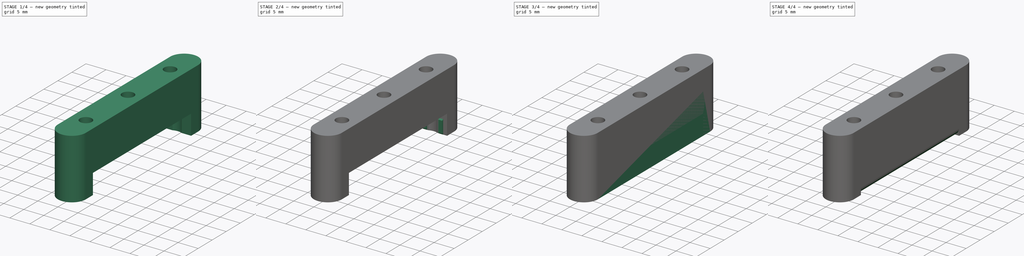
[diagram: build sequence overview — one tinted view per stage of 4, left to right]
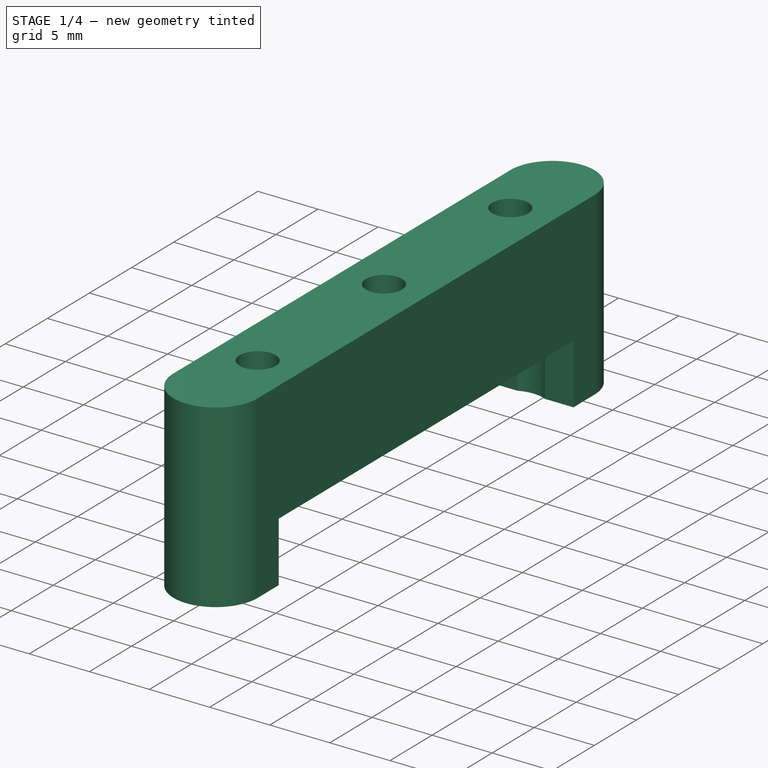
[diagram: stage 1 of 4 — iso view after this stage's code; geometry added in this stage tinted green]
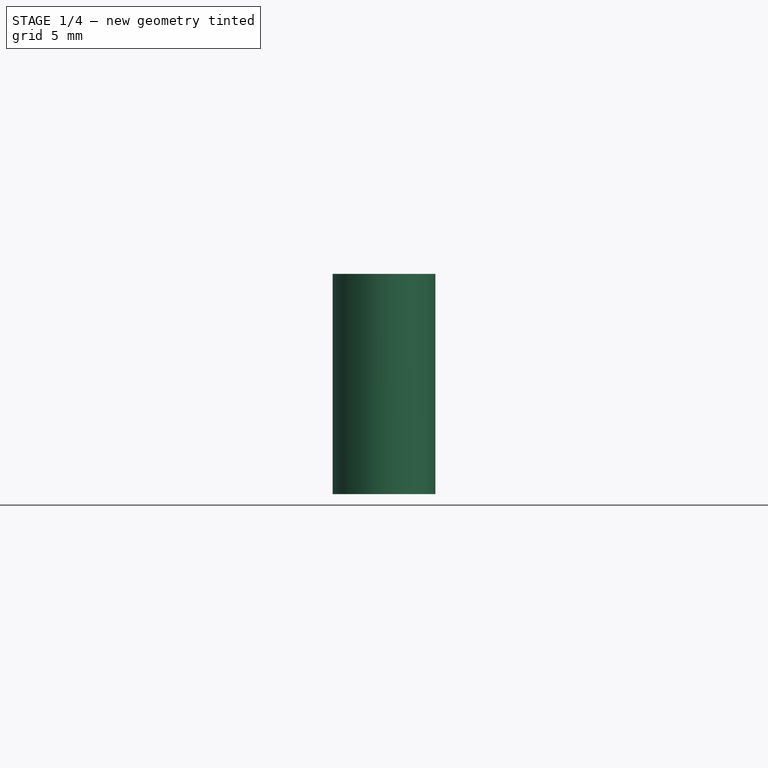
[diagram: stage 1 of 4 — front view after this stage's code; geometry added in this stage tinted green]
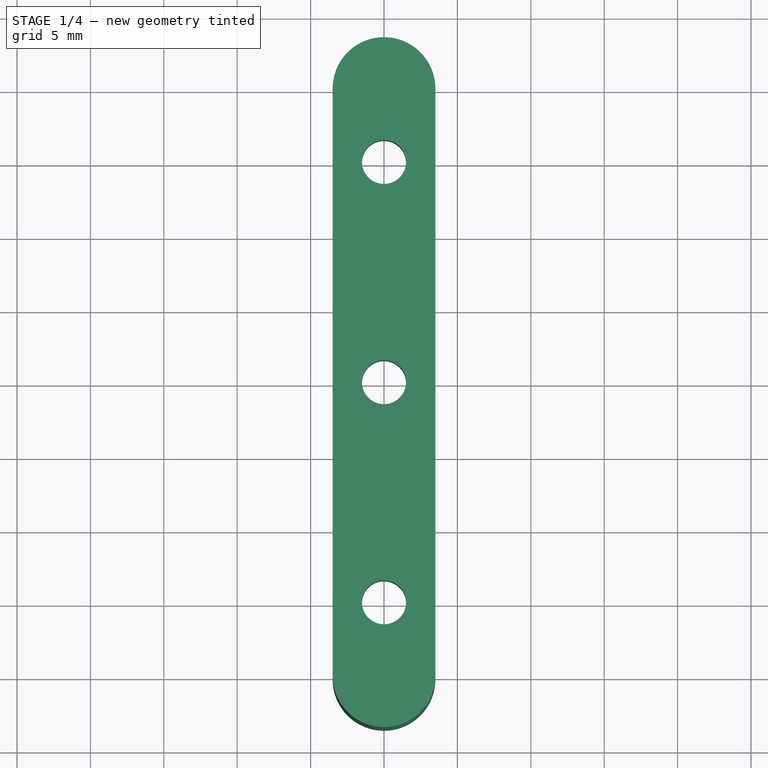
[diagram: stage 1 of 4 — top view after this stage's code; geometry added in this stage tinted green]
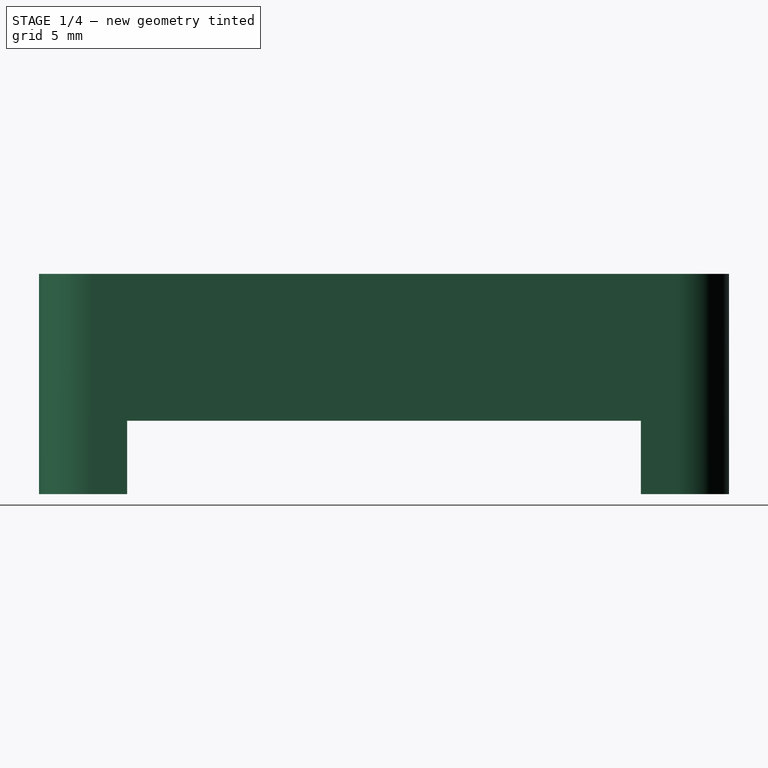
[diagram: stage 1 of 4 — right view after this stage's code; geometry added in this stage tinted green]
FCSTD DOCUMENT  (FreeCAD 1.1R39980 (Git))
Label: din35_holder
License: All rights reserved
LicenseURL: https://en.wikipedia.org/wiki/All_rights_reserved
objects: Sketcher::SketchObject×8, PartDesign::Pad×4, PartDesign::Pocket×4, PartDesign::Fillet×2, PartDesign::Chamfer×2, PartDesign::Body×2, App::Point×2, App::VarSet×1
note: 54 computed .brp shape members not serialized (recipe doc carries the construction recipe); baked Part::Feature solids carry a one-line shape summary decoded from their .brp

FEATURE [PartDesign::Body] Body
  AllowCompound = false
  Group = -> [VarSet,Sketch,Pad,Sketch001,Pocket,Fillet,Chamfer,Sketch002,Fillet001,Pocket001]
  Origin = -> Origin
  Tip = -> Pocket001
FEATURE [Sketcher::SketchObject] Sketch003
  ArcFitTolerance = 1e-06
  AttachmentSupport = -> [XY_Plane001]
  ExternalTypes = [0]
  FullyConstrained = true
  MakeInternals = false
  MapMode = 5
  sketch-geometry (7):
    g0: Circle CenterX=0 CenterY=15 CenterZ=0 NormalX=0 NormalY=0 NormalZ=1 AngleXU=0 Radius=1.5
    g1: Circle CenterX=0 CenterY=0 CenterZ=0 NormalX=0 NormalY=0 NormalZ=1 AngleXU=0 Radius=1.5
    g2: Circle CenterX=0 CenterY=-15 CenterZ=0 NormalX=0 NormalY=0 NormalZ=1 AngleXU=0 Radius=1.5
    g3: ArcOfCircle CenterX=0 CenterY=20 CenterZ=0 NormalX=0 NormalY=0 NormalZ=1 AngleXU=0 Radius=3.5 StartAngle=-2.7e-15 EndAngle=3.14159
    g4: ArcOfCircle CenterX=0 CenterY=-20 CenterZ=0 NormalX=0 NormalY=0 NormalZ=1 AngleXU=0 Radius=3.5 StartAngle=3.14159 EndAngle=6.28319
    g5: LineSegment StartX=3.5 StartY=20 StartZ=0 EndX=3.5 EndY=-20 EndZ=0
    g6: LineSegment StartX=-3.5 StartY=20 StartZ=0 EndX=-3.5 EndY=-20 EndZ=0
  constraints (16):
    c: PointOnObject(g0,g-2)
    c: Coincident(g1,g-1)
    c: Equal(g2,g1)
    c: Equal(g1,g0)
    c: Symmetric(g0,g2,g-1)
    c: DistanceY(g2,g0) = 30
    c: Diameter(g1) = 3
    c: Tangent(g3,g5) = 1.5708
    c: Tangent(g3,g6) = -1.5708
    c: Tangent(g4,g5) = 1.5708
    c: Tangent(g4,g6) = -1.5708
    c: Equal(g3,g4)
    c: Radius(g3) = 3.5
    c: PointOnObject(g3,g-2)
    c: Symmetric(g4,g3,g-1)
    c: DistanceY(g4,g3) = 40
FEATURE [PartDesign::Pad] Pad001
  Direction = (0,0,1)
  Length = 15
  Length2 = 10
  Profile = -> Sketch003
  ReferenceAxis = -> Sketch003 [N_Axis]
  Refine = true
  Suppressed = false
  Type = 0
FEATURE [Sketcher::SketchObject] Sketch004
  ArcFitTolerance = 1e-06
  AttachmentSupport = -> [Pad001]
  ExternalTypes = [0]
  FullyConstrained = true
  MakeInternals = false
  MapMode = 5
  Placement = pos=(3.5,0,0) rot=(0.57735,0.57735,0.57735;2.0944rad)
  sketch-geometry (4):
    g0: LineSegment StartX=-17.5 StartY=0 StartZ=0 EndX=-17.5 EndY=5 EndZ=0
    g1: LineSegment StartX=-17.5 StartY=5 StartZ=0 EndX=17.5 EndY=5 EndZ=0
    g2: LineSegment StartX=17.5 StartY=5 StartZ=0 EndX=17.5 EndY=0 EndZ=0
    g3: LineSegment StartX=17.5 StartY=0 StartZ=0 EndX=-17.5 EndY=0 EndZ=0
  constraints (11):
    c: PointOnObject(g0,g-1)
    c: Vertical(g0)
    c: Coincident(g0,g1)
    c: Horizontal(g1)
    c: Coincident(g1,g2)
    c: Coincident(g2,g3)
    c: Coincident(g3,g0)
    c: Vertical(g2)
    c: Symmetric(g0,g2,g-2)
    c: DistanceY(g2,g2) = 5
    c: DistanceX(g3,g3) = 35
FEATURE [PartDesign::Pocket] Pocket002
  BaseFeature = -> Pad001
  Direction = (-1,0,0)
  Length = 5
  Length2 = 5
  Profile = -> Sketch004
  ReferenceAxis = -> Sketch004 [N_Axis]
  Refine = true
  Suppressed = false
  Type = 1
FEATURE [Sketcher::SketchObject] Sketch005
  ArcFitTolerance = 1e-06
  AttachmentSupport = -> [Pocket002]
  ExternalGeometry = -> [Pocket002]
  ExternalTypes = [0]
  FullyConstrained = true
  MakeInternals = false
  MapMode = 5
  Placement = pos=(0,0,5) rot=(1,0,0;3.14159rad)
  sketch-geometry (3):
    g0: Circle CenterX=0 CenterY=15 CenterZ=0 NormalX=0 NormalY=0 NormalZ=1 AngleXU=0 Radius=2.75
    g1: Circle CenterX=0 CenterY=0 CenterZ=0 NormalX=0 NormalY=0 NormalZ=1 AngleXU=0 Radius=2.75
    g2: Circle CenterX=0 CenterY=-15 CenterZ=0 NormalX=0 NormalY=0 NormalZ=1 AngleXU=0 Radius=2.75
  constraints (6):
    c: Coincident(g0,g-3)
    c: Coincident(g1,g-1)
    c: Coincident(g2,g-4)
    c: Equal(g2,g1)
    c: Equal(g1,g0)
    c: Diameter(g0) = 5.5
FEATURE [PartDesign::Pocket] Pocket003
  BaseFeature = -> Pocket002
  Direction = (0,0,1)
  Length = 5
  Length2 = 5
  Profile = -> Sketch005
  ReferenceAxis = -> Sketch005 [N_Axis]
  Refine = true
  Suppressed = false
  Type = 4
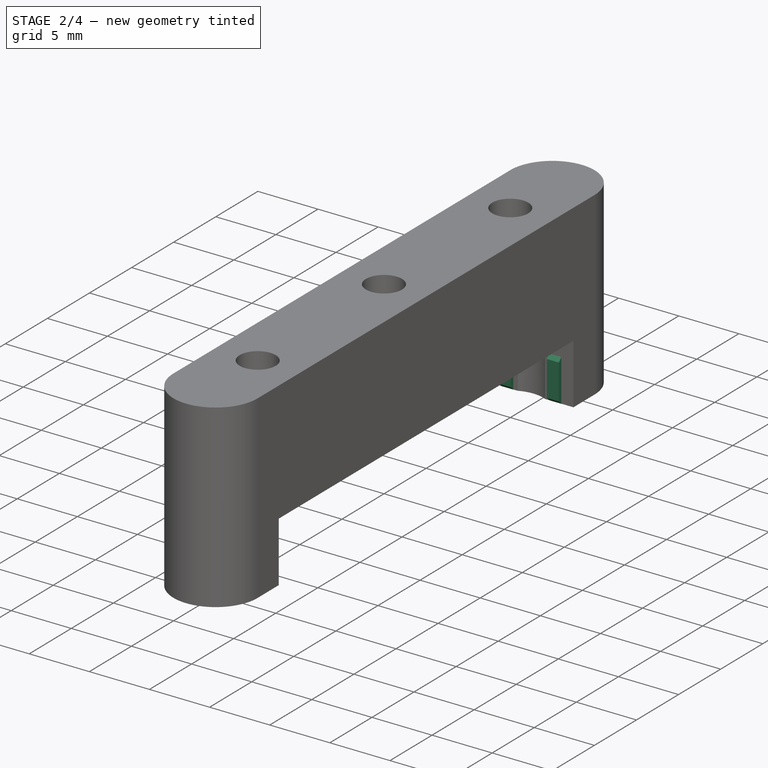
[diagram: stage 2 of 4 — iso view after this stage's code; geometry added in this stage tinted green]
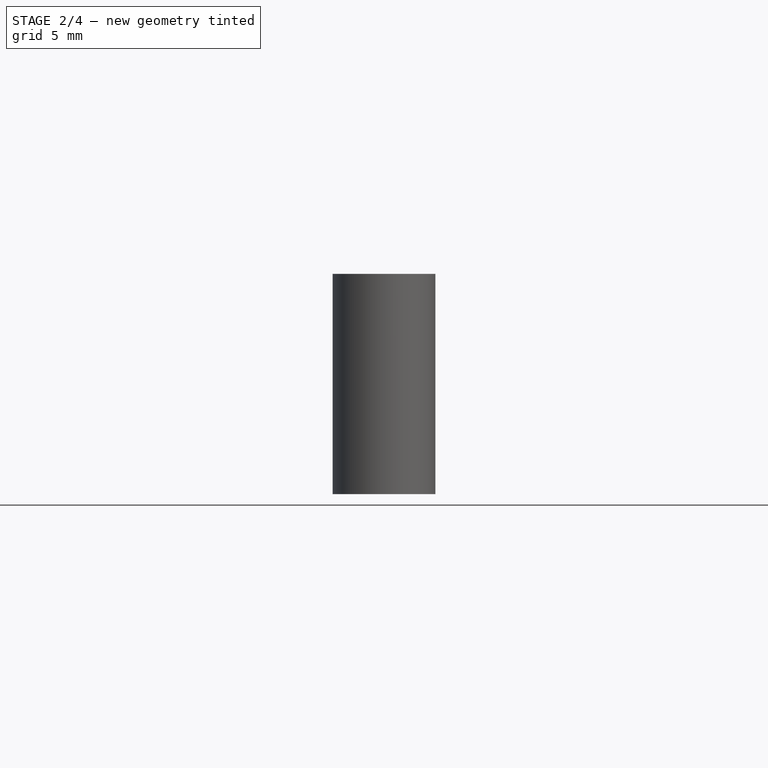
[diagram: stage 2 of 4 — front view after this stage's code; geometry added in this stage tinted green]
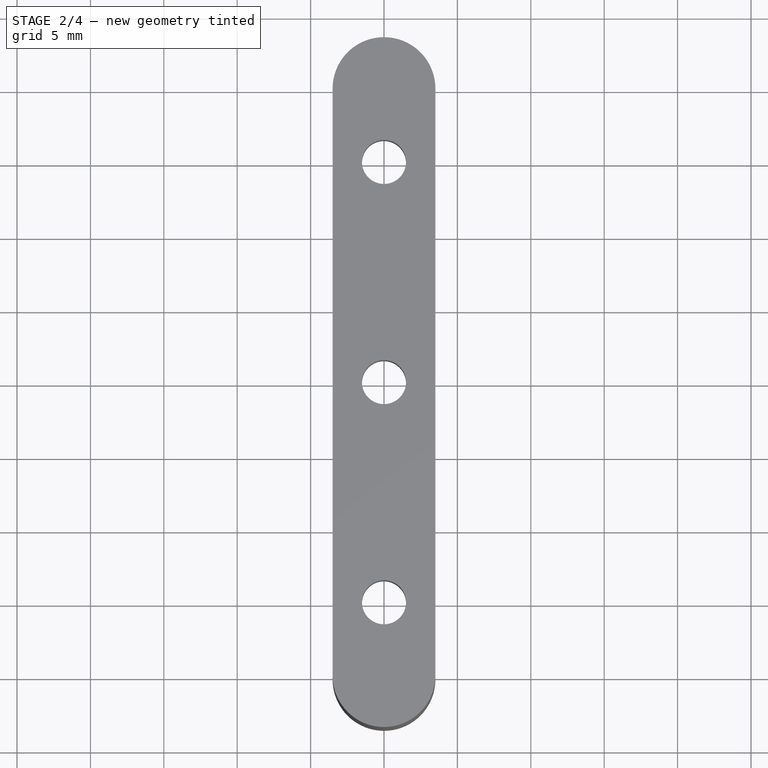
[diagram: stage 2 of 4 — top view after this stage's code; geometry added in this stage tinted green]
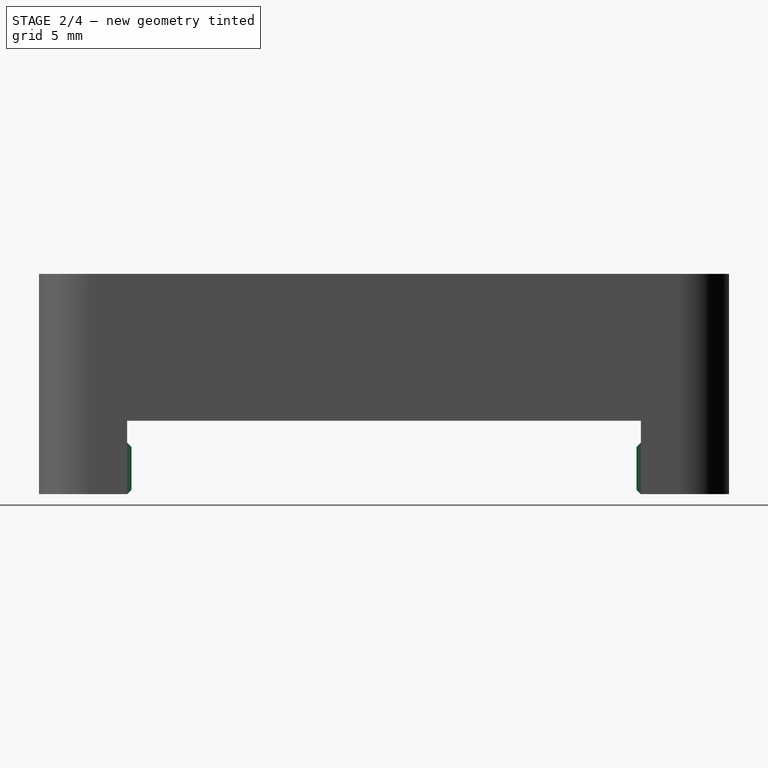
[diagram: stage 2 of 4 — right view after this stage's code; geometry added in this stage tinted green]
FEATURE [Sketcher::SketchObject] Sketch006
  ArcFitTolerance = 1e-06
  AttachmentSupport = -> [Pocket003]
  ExternalTypes = [0]
  FullyConstrained = true
  MakeInternals = false
  MapMode = 5
  Placement = pos=(0,-17.5,0) rot=(0,0.707107,0.707107;3.14159rad)
  sketch-geometry (8):
    g0: LineSegment StartX=-2.5 StartY=0 StartZ=0 EndX=-1.5 EndY=0 EndZ=0
    g1: LineSegment StartX=-1.5 StartY=0 StartZ=0 EndX=-1.5 EndY=3.5 EndZ=0
    g2: LineSegment StartX=-1.5 StartY=3.5 StartZ=0 EndX=-2.5 EndY=3.5 EndZ=0
    g3: LineSegment StartX=-2.5 StartY=3.5 StartZ=0 EndX=-2.5 EndY=0 EndZ=0
    g4: LineSegment StartX=1.5 StartY=0 StartZ=0 EndX=2.5 EndY=0 EndZ=0
    g5: LineSegment StartX=2.5 StartY=0 StartZ=0 EndX=2.5 EndY=3.5 EndZ=0
    g6: LineSegment StartX=2.5 StartY=3.5 StartZ=0 EndX=1.5 EndY=3.5 EndZ=0
    g7: LineSegment StartX=1.5 StartY=3.5 StartZ=0 EndX=1.5 EndY=0 EndZ=0
  constraints (23):
    c: Coincident(g0,g1)
    c: Coincident(g1,g2)
    c: Coincident(g2,g3)
    c: Coincident(g3,g0)
    c: Horizontal(g0)
    c: Horizontal(g2)
    c: Vertical(g1)
    c: Vertical(g3)
    c: PointOnObject(g0,g-1)
    c: Coincident(g4,g5)
    c: Coincident(g5,g6)
    c: Coincident(g6,g7)
    c: Coincident(g7,g4)
    c: Horizontal(g4)
    c: Horizontal(g6)
    c: Vertical(g5)
    c: Vertical(g7)
    c: Symmetric(g0,g4,g-2)
    c: Equal(g0,g4)
    c: DistanceX(g4,g4) = 1
    c: Equal(g5,g1)
    c: DistanceY(g5,g5) = 3.5
    c: DistanceX(g0,g4) = 3
FEATURE [PartDesign::Pad] Pad002
  BaseFeature = -> Pocket003
  Direction = (0,1,-2e-16)
  Length = 0.3
  Length2 = 10
  Profile = -> Sketch006
  ReferenceAxis = -> Sketch006 [N_Axis]
  Refine = true
  Suppressed = false
  Type = 0
FEATURE [Sketcher::SketchObject] Sketch007
  ArcFitTolerance = 1e-06
  AttachmentSupport = -> [Pad002]
  ExternalTypes = [0]
  FullyConstrained = true
  MakeInternals = false
  MapMode = 5
  Placement = pos=(0,17.5,0) rot=(1,0,0;1.5708rad)
  sketch-geometry (8):
    g0: LineSegment StartX=-2.5 StartY=3.5 StartZ=0 EndX=-2.5 EndY=0 EndZ=0
    g1: LineSegment StartX=-2.5 StartY=0 StartZ=0 EndX=-1.5 EndY=0 EndZ=0
    g2: LineSegment StartX=-1.5 StartY=0 StartZ=0 EndX=-1.5 EndY=3.5 EndZ=0
    g3: LineSegment StartX=-1.5 StartY=3.5 StartZ=0 EndX=-2.5 EndY=3.5 EndZ=0
    g4: LineSegment StartX=1.5 StartY=3.5 StartZ=0 EndX=1.5 EndY=0 EndZ=0
    g5: LineSegment StartX=1.5 StartY=0 StartZ=0 EndX=2.5 EndY=0 EndZ=0
    g6: LineSegment StartX=2.5 StartY=0 StartZ=0 EndX=2.5 EndY=3.5 EndZ=0
    g7: LineSegment StartX=2.5 StartY=3.5 StartZ=0 EndX=1.5 EndY=3.5 EndZ=0
  constraints (23):
    c: Coincident(g0,g1)
    c: Coincident(g1,g2)
    c: Coincident(g2,g3)
    c: Coincident(g3,g0)
    c: Vertical(g0)
    c: Vertical(g2)
    c: Horizontal(g1)
    c: Horizontal(g3)
    c: Coincident(g4,g5)
    c: Coincident(g5,g6)
    c: Coincident(g6,g7)
    c: Coincident(g7,g4)
    c: Vertical(g4)
    c: Vertical(g6)
    c: Horizontal(g5)
    c: Horizontal(g7)
    c: PointOnObject(g5,g-1)
    c: DistanceX(g5,g5) = 1
    c: Symmetric(g1,g4,g-2)
    c: Equal(g1,g5)
    c: Equal(g6,g2)
    c: DistanceY(g6,g6) = 3.5
    c: DistanceX(g1,g4) = 3
FEATURE [PartDesign::Pad] Pad003
  BaseFeature = -> Pad002
  Direction = (0,-1,2e-16)
  Length = 0.3
  Length2 = 10
  Profile = -> Sketch007
  ReferenceAxis = -> Sketch007 [N_Axis]
  Refine = true
  Suppressed = false
  Type = 0
FEATURE [PartDesign::Chamfer] Chamfer001
  Angle = 45
  Base = -> Pad003 [Edge102,Edge98,Edge77,Edge101,Edge47,Edge91,Edge87,Edge52]
  BaseFeature = -> Pad003
  ChamferType = 0
  FlipDirection = false
  Refine = true
  Size = 0.29
  Size2 = 1
  SupportTransform = false
  Suppressed = false
  UseAllEdges = false
FEATURE [PartDesign::Body] Body001  label="din35_2"
  AllowCompound = false
  Group = -> [Sketch003,Pad001,Sketch004,Pocket002,Sketch005,Pocket003,Sketch006,Pad002,Sketch007,Pad003,Chamfer001]
  Origin = -> Origin001
  Tip = -> Chamfer001
FEATURE [App::Point] Origin002  label="Origin"
  Role = Origin
FEATURE [App::Point] Origin003  label="Origin"
  Role = Origin
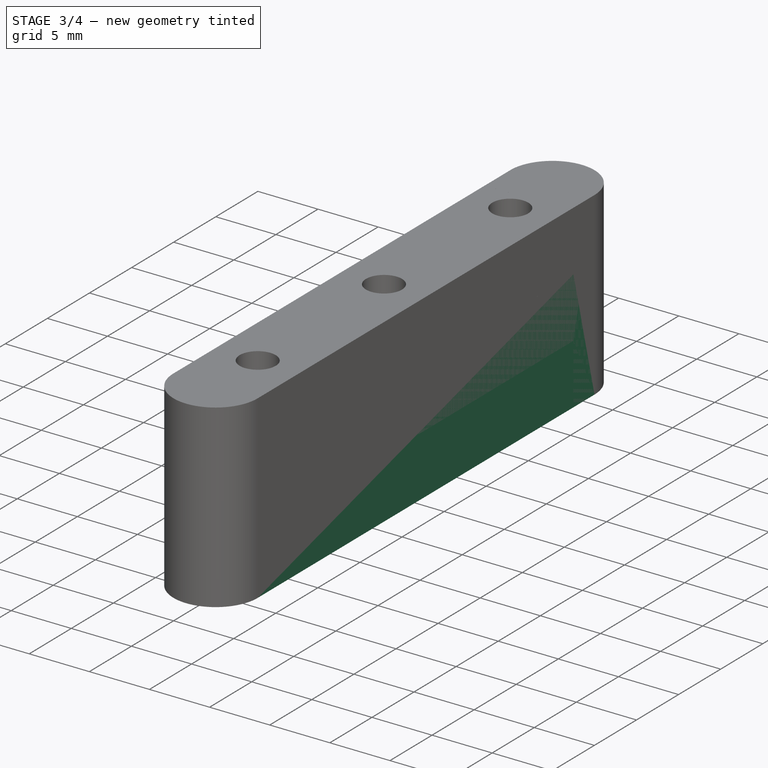
[diagram: stage 3 of 4 — iso view after this stage's code; geometry added in this stage tinted green]
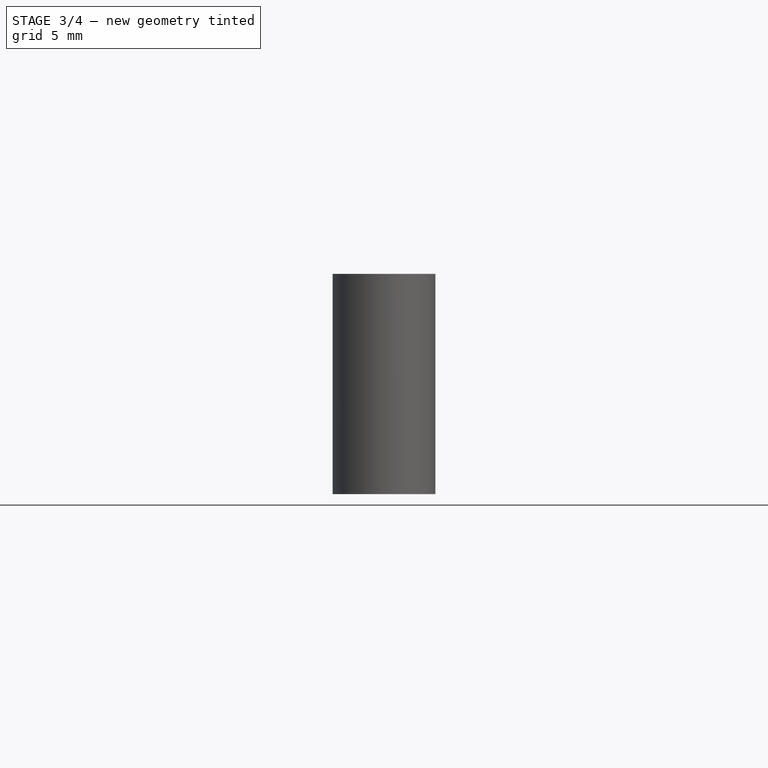
[diagram: stage 3 of 4 — front view after this stage's code; geometry added in this stage tinted green]
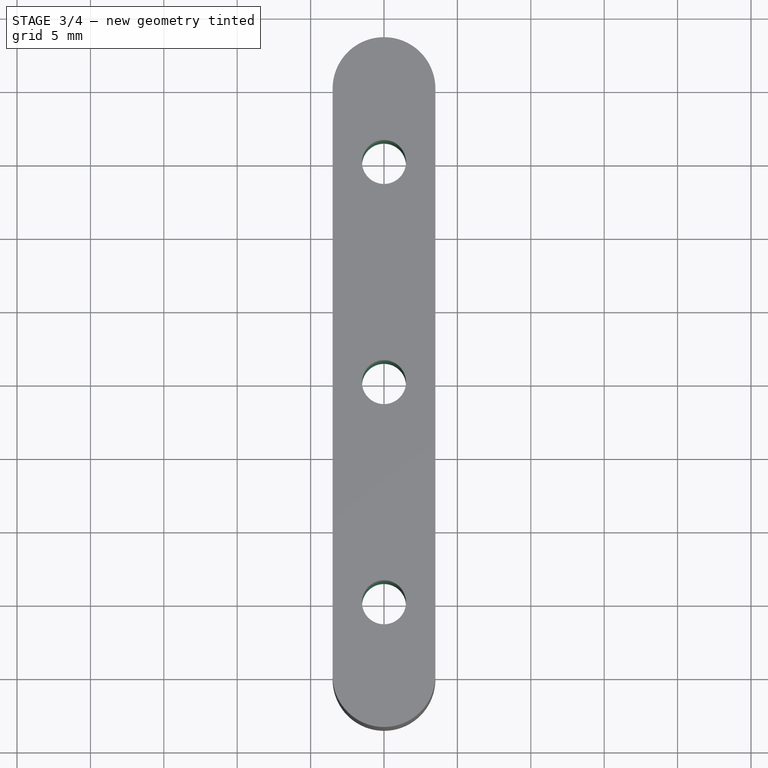
[diagram: stage 3 of 4 — top view after this stage's code; geometry added in this stage tinted green]
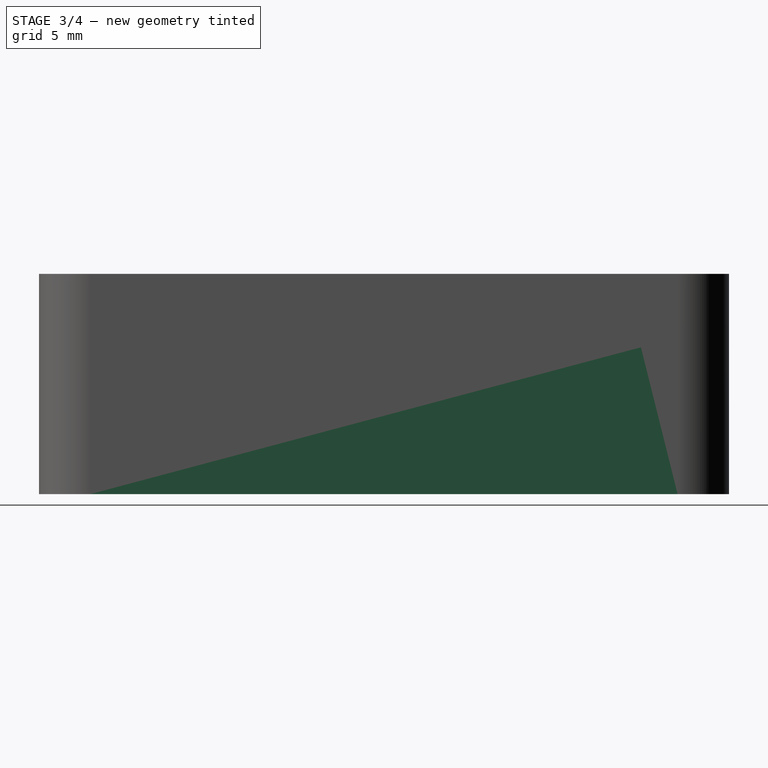
[diagram: stage 3 of 4 — right view after this stage's code; geometry added in this stage tinted green]
FEATURE [App::VarSet] VarSet  label="Holder Properties"
  ChamferValue = 1
  FilletRadius = 2.5
  Height = 15
  HoleDiameter = 3
  HoleDistance = 30
  InnerDiameter = 25
  InnerFilletRadius = 1
  InnerHeight = 6
  Length = 45
  OutherDiameter = 27
  OutherFilletRadius = 3
  OutherHeight = 7
  PlateThickness = 1.2
  RailSeparation = 35
  Width = 7
FEATURE [Sketcher::SketchObject] Sketch
  ArcFitTolerance = 1e-06
  AttachmentSupport = -> [XY_Plane]
  ExternalTypes = [0]
  FullyConstrained = true
  MakeInternals = false
  MapMode = 5
  expr: Constraints[10] = <<Holder Properties>>.Width
  expr: Constraints[11] = <<Holder Properties>>.Length
  expr: Constraints[17] = <<Holder Properties>>.HoleDiameter
  expr: Constraints[18] = <<Holder Properties>>.HoleDistance
  sketch-geometry (8):
    g0: LineSegment StartX=-3.5 StartY=22.5 StartZ=0 EndX=-3.5 EndY=-22.5 EndZ=0
    g1: LineSegment StartX=-3.5 StartY=-22.5 StartZ=0 EndX=3.5 EndY=-22.5 EndZ=0
    g2: LineSegment StartX=3.5 StartY=-22.5 StartZ=0 EndX=3.5 EndY=22.5 EndZ=0
    g3: LineSegment StartX=3.5 StartY=22.5 StartZ=0 EndX=-3.5 EndY=22.5 EndZ=0
    g4: GeomPoint [constr] X=0 Y=0 Z=0
    g5: Circle CenterX=0 CenterY=0 CenterZ=0 NormalX=0 NormalY=0 NormalZ=1 AngleXU=0 Radius=1.5
    g6: Circle CenterX=0 CenterY=15 CenterZ=0 NormalX=0 NormalY=0 NormalZ=1 AngleXU=0 Radius=1.5
    g7: Circle CenterX=0 CenterY=-15 CenterZ=0 NormalX=0 NormalY=0 NormalZ=1 AngleXU=0 Radius=1.5
  constraints (19):
    c: Coincident(g0,g1)
    c: Coincident(g1,g2)
    c: Coincident(g2,g3)
    c: Coincident(g3,g0)
    c: Vertical(g0)
    c: Vertical(g2)
    c: Horizontal(g1)
    c: Horizontal(g3)
    c: Symmetric(g2,g0,g4)
    c: Coincident(g4,g-1)
    c: DistanceX(g3,g3) = 7
    c: DistanceY(g2,g2) = 45
    c: Coincident(g5,g4)
    c: PointOnObject(g6,g-2)
    c: Symmetric(g6,g7,g4)
    c: Equal(g6,g5)
    c: Equal(g5,g7)
    c: Diameter(g6) = 3
    c: DistanceY(g7,g6) = 30
FEATURE [PartDesign::Pad] Pad
  Direction = (0,0,1)
  Length = 15
  Length2 = 10
  Profile = -> Sketch
  ReferenceAxis = -> Sketch [N_Axis]
  Refine = true
  Suppressed = false
  Type = 0
  expr: Length = <<Holder Properties>>.Height
FEATURE [Sketcher::SketchObject] Sketch001
  ArcFitTolerance = 1e-06
  AttachmentSupport = -> [Pad]
  ExternalGeometry = -> [Pad]
  ExternalTypes = [0]
  FullyConstrained = true
  MakeInternals = false
  MapMode = 5
  Placement = pos=(3.5,0,0) rot=(0.57735,0.57735,0.57735;2.0944rad)
  sketch-geometry (8):
    g0: LineSegment StartX=-17.5 StartY=10 StartZ=0 EndX=17.5 EndY=10 EndZ=0
    g1: LineSegment StartX=17.5 StartY=10 StartZ=0 EndX=17.5 EndY=11.2 EndZ=0
    g2: LineSegment StartX=17.5 StartY=11.2 StartZ=0 EndX=17 EndY=11.2 EndZ=0
    g3: LineSegment StartX=17 StartY=11.2 StartZ=0 EndX=17 EndY=15 EndZ=0
    g4: LineSegment StartX=17 StartY=15 StartZ=0 EndX=-17 EndY=15 EndZ=0
    g5: LineSegment StartX=-17 StartY=15 StartZ=0 EndX=-17 EndY=11.2 EndZ=0
    g6: LineSegment StartX=-17 StartY=11.2 StartZ=0 EndX=-17.5 EndY=11.2 EndZ=0
    g7: LineSegment StartX=-17.5 StartY=11.2 StartZ=0 EndX=-17.5 EndY=10 EndZ=0
  constraints (22):
    c: Coincident(g0,g1)
    c: Vertical(g1)
    c: Coincident(g1,g2)
    c: Horizontal(g2)
    c: Coincident(g2,g3)
    c: Vertical(g3)
    c: Coincident(g3,g4)
    c: Coincident(g4,g5)
    c: Vertical(g5)
    c: Coincident(g5,g6)
    c: Coincident(g6,g7)
    c: Coincident(g7,g0)
    c: DistanceX(g0,g0) = 35
    c: Vertical(g7)
    c: Symmetric(g0,g0,g-2)
    c: Horizontal(g6)
    c: Symmetric(g4,g3,g-2)
    c: Equal(g5,g3)
    c: DistanceY(g-1,g0) = 10
    c: DistanceX(g4,g4) = 34
    c: DistanceY(g1,g1) = 1.2
    c: PointOnObject(g3,g-3)
FEATURE [PartDesign::Pocket] Pocket
  BaseFeature = -> Pad
  Direction = (-1,0,0)
  Length = 5
  Length2 = 5
  Profile = -> Sketch001
  ReferenceAxis = -> Sketch001 [N_Axis]
  Refine = true
  Suppressed = false
  Type = 1
FEATURE [PartDesign::Fillet] Fillet
  Base = -> Pocket [Face13,Face3]
  BaseFeature = -> Pocket
  Radius = 2.5
  Refine = true
  SupportTransform = false
  Suppressed = false
  UseAllEdges = false
  expr: Radius = <<Holder Properties>>.FilletRadius
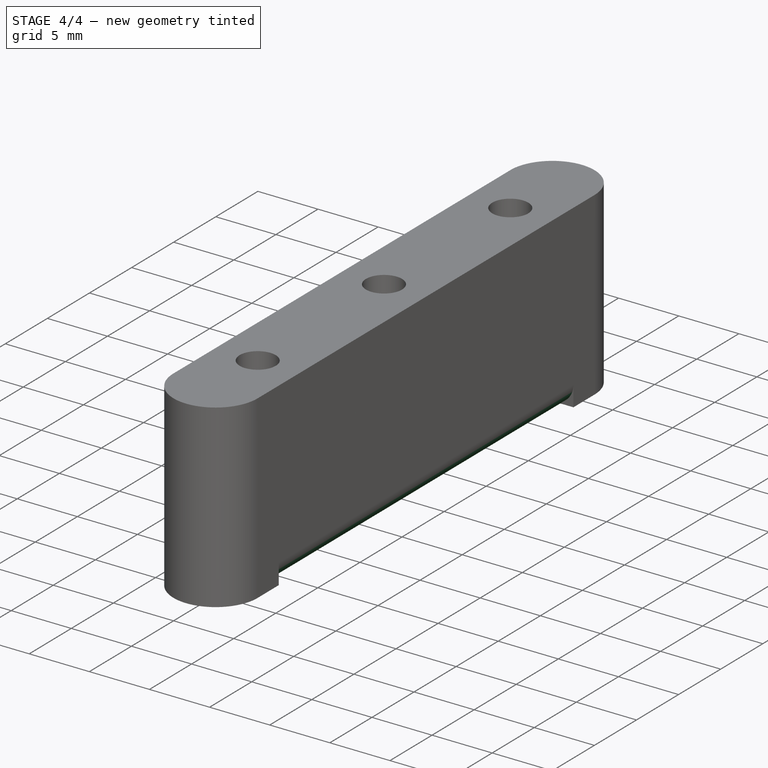
[diagram: stage 4 of 4 — iso view after this stage's code; geometry added in this stage tinted green]
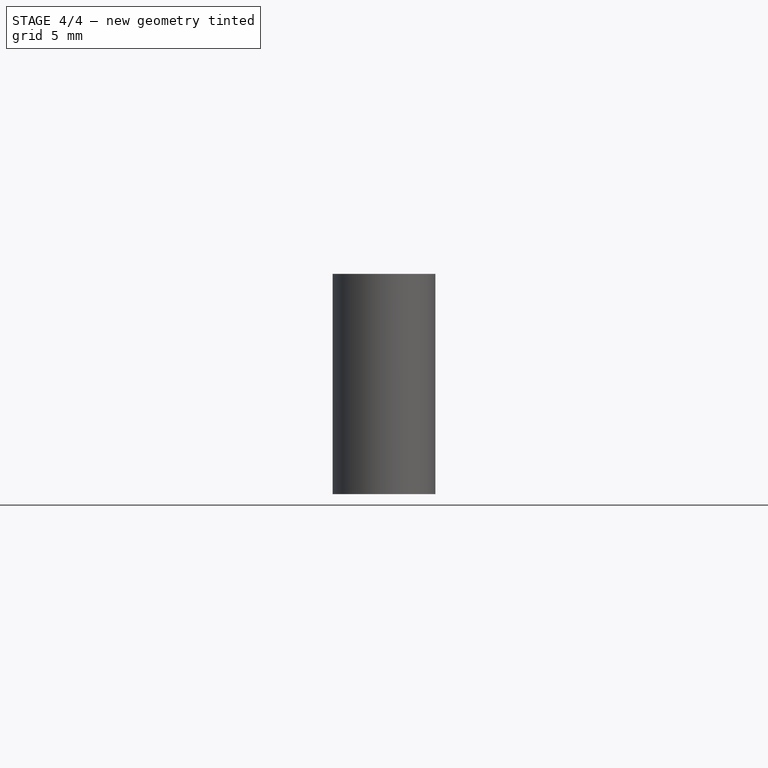
[diagram: stage 4 of 4 — front view after this stage's code; geometry added in this stage tinted green]
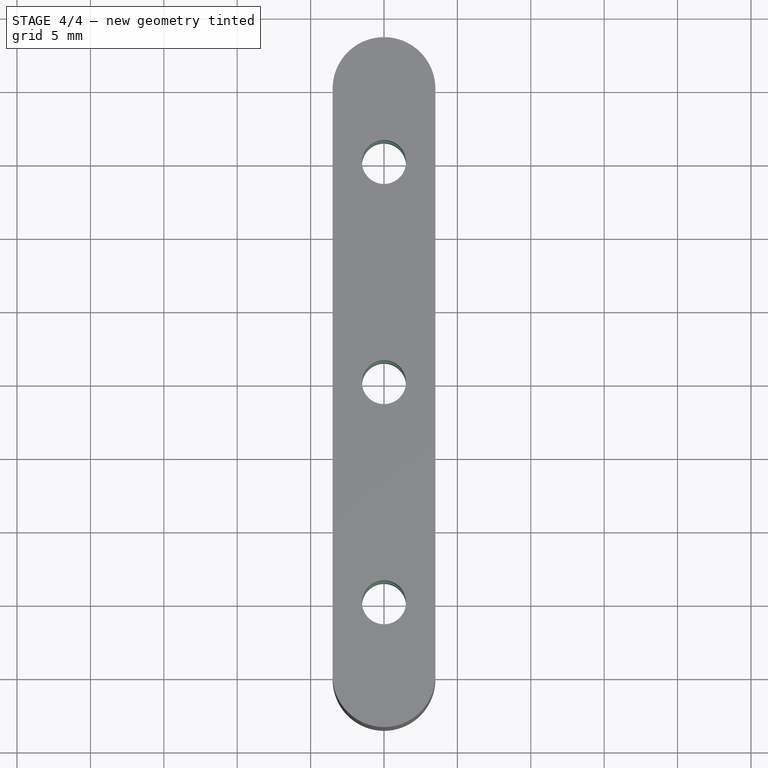
[diagram: stage 4 of 4 — top view after this stage's code; geometry added in this stage tinted green]
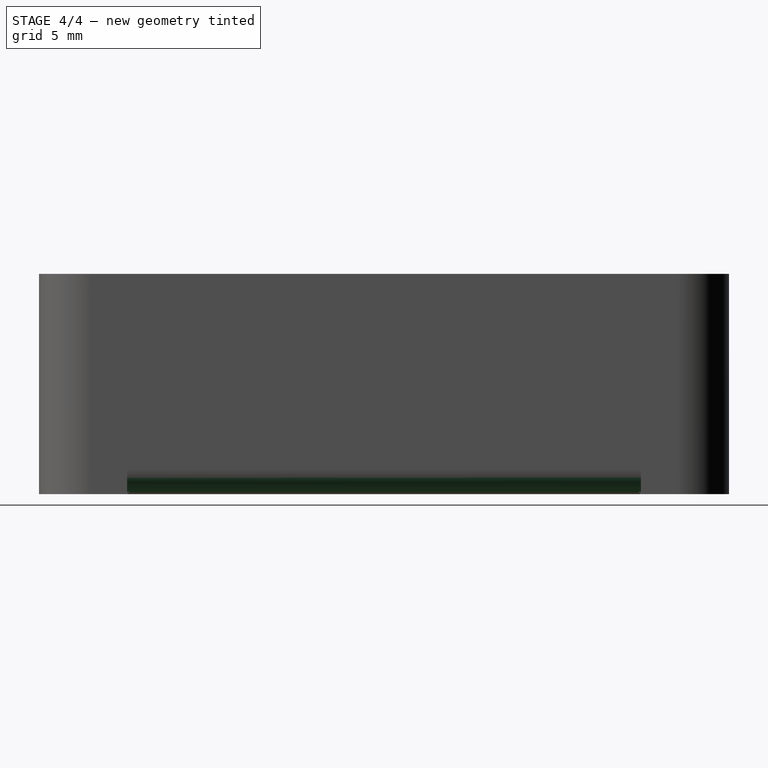
[diagram: stage 4 of 4 — right view after this stage's code; geometry added in this stage tinted green]
FEATURE [PartDesign::Chamfer] Chamfer
  Angle = 45
  Base = -> Fillet [Edge7,Edge33,Edge30,Edge31,Edge27,Edge6,Edge43,Edge12]
  BaseFeature = -> Fillet
  ChamferType = 0
  FlipDirection = false
  Refine = true
  Size = 0.5
  Size2 = 1
  SupportTransform = false
  Suppressed = false
  UseAllEdges = false
  expr: Size = 0.5 mm
FEATURE [Sketcher::SketchObject] Sketch002
  ArcFitTolerance = 1e-06
  AttachmentSupport = -> [Chamfer]
  ExternalGeometry = -> [Chamfer]
  ExternalTypes = [0]
  FullyConstrained = true
  MakeInternals = false
  MapMode = 5
  Placement = pos=(0,0,10) rot=(0,0,1;0rad)
  sketch-geometry (3):
    g0: Circle CenterX=0 CenterY=-15 CenterZ=0 NormalX=0 NormalY=0 NormalZ=1 AngleXU=0 Radius=2.5
    g1: Circle CenterX=0 CenterY=0 CenterZ=0 NormalX=0 NormalY=0 NormalZ=1 AngleXU=0 Radius=2.5
    g2: Circle CenterX=0 CenterY=15 CenterZ=0 NormalX=0 NormalY=0 NormalZ=1 AngleXU=0 Radius=2.5
  constraints (6):
    c: Coincident(g0,g-5)
    c: Coincident(g1,g-1)
    c: Coincident(g2,g-3)
    c: Equal(g2,g1)
    c: Equal(g1,g0)
    c: Diameter(g1) = 5
FEATURE [PartDesign::Fillet] Fillet001
  Base = -> Chamfer [Edge5,Edge30,Edge9,Edge39,Edge1,Edge13]
  BaseFeature = -> Chamfer
  Radius = 1.7
  Refine = true
  SupportTransform = false
  Suppressed = false
  UseAllEdges = false
FEATURE [PartDesign::Pocket] Pocket001
  BaseFeature = -> Fillet001
  Direction = (0,0,-1)
  Length = 5
  Length2 = 5
  Profile = -> Sketch002
  ReferenceAxis = -> Sketch002 [N_Axis]
  Refine = true
  Suppressed = false
  Type = 0
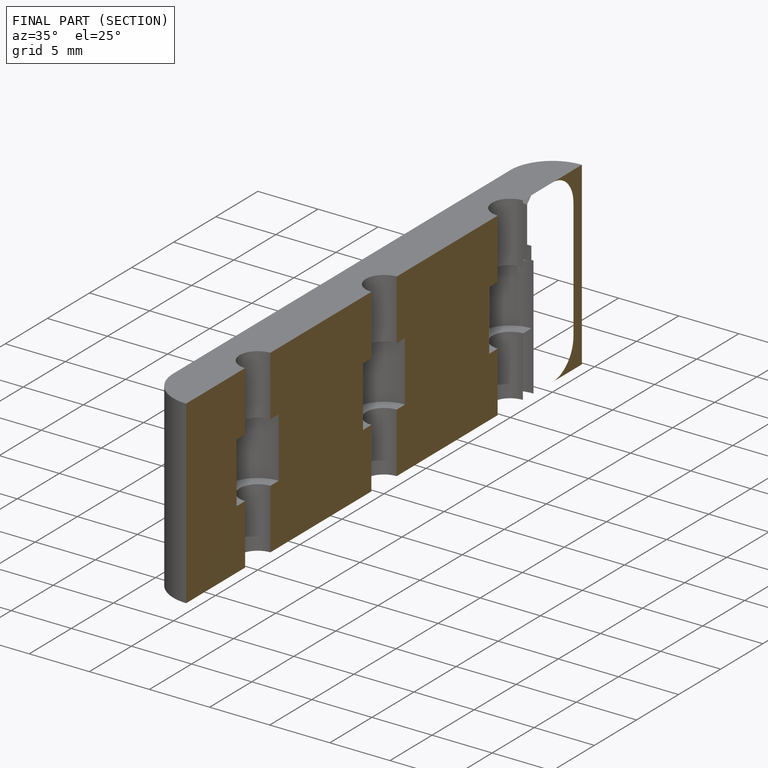
[diagram: finished part — half-section view (interior)]
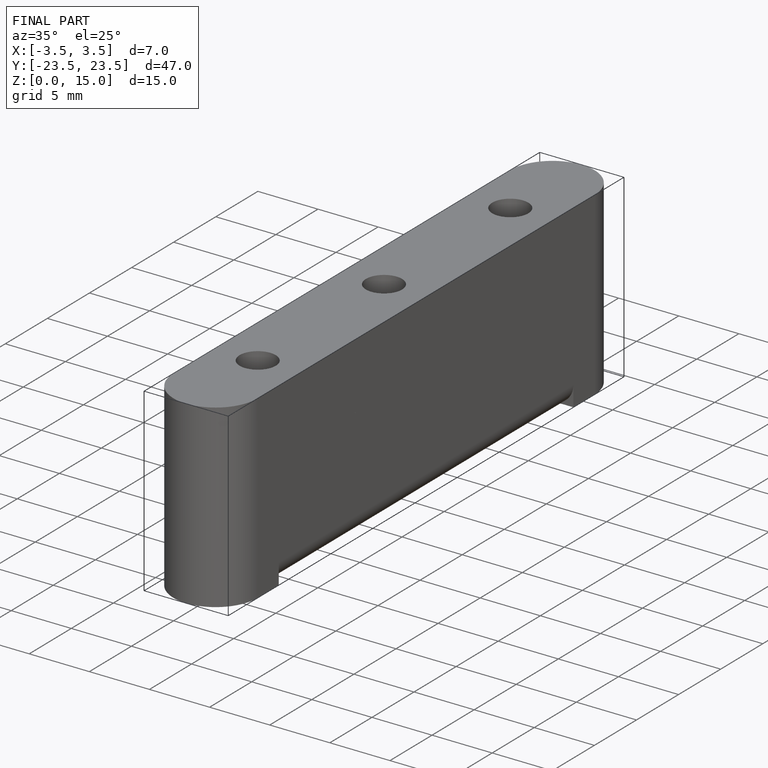
[diagram: finished part — iso view with bounding-box wireframe]
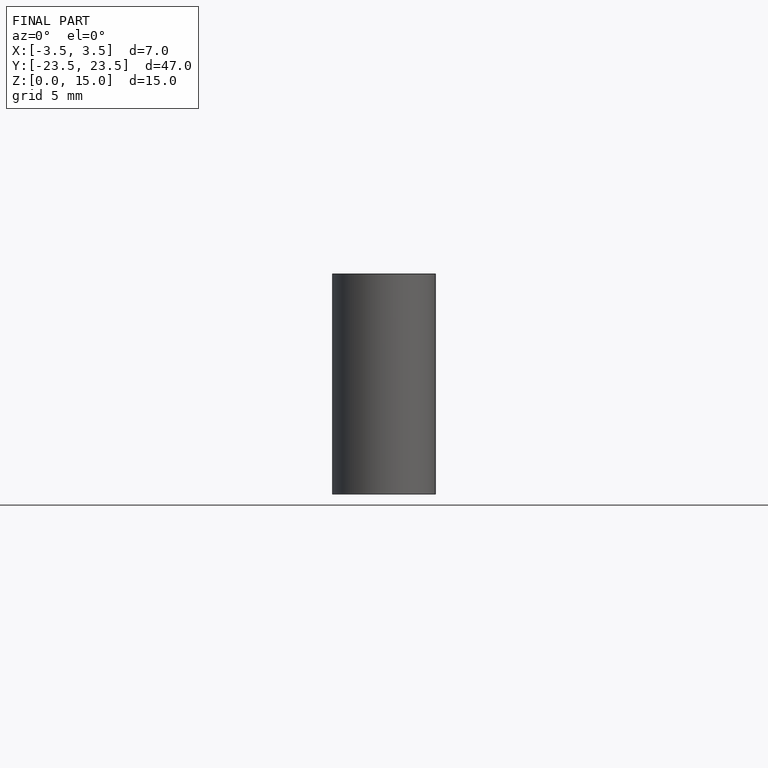
[diagram: finished part — front view with bounding-box wireframe]
